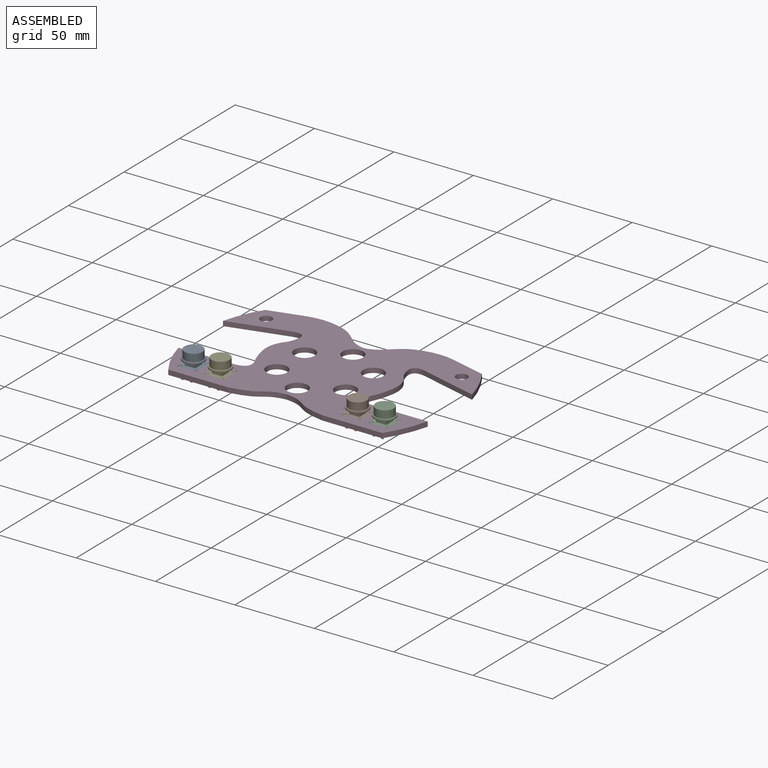
[diagram: assembled view]
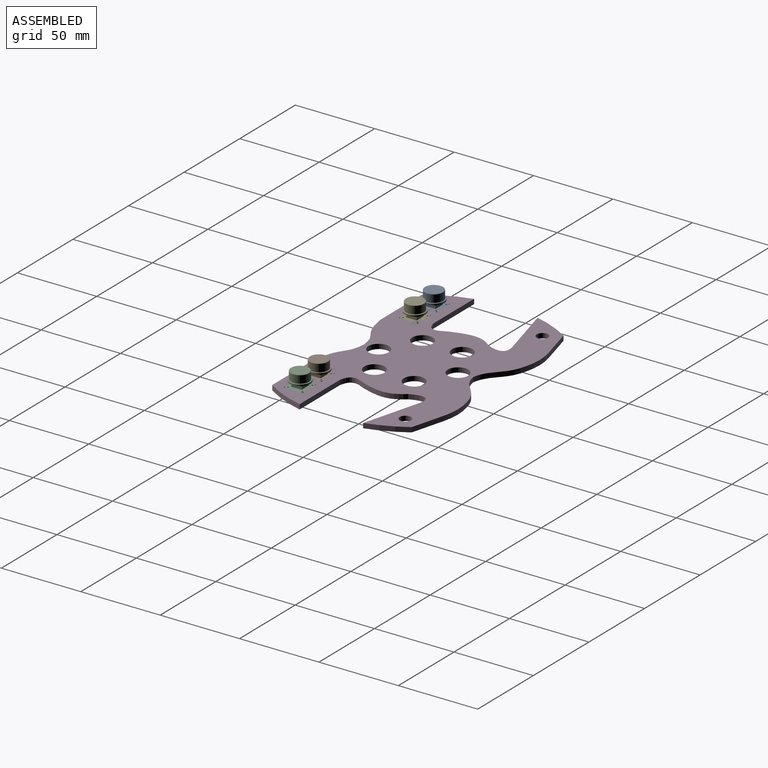
[diagram: assembled view, second angle]
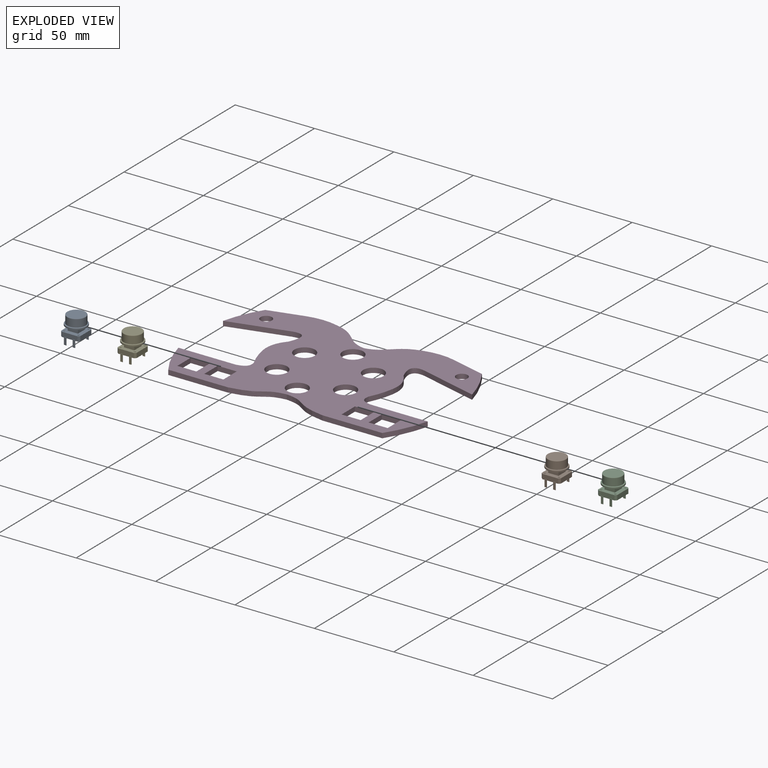
[diagram: exploded view]
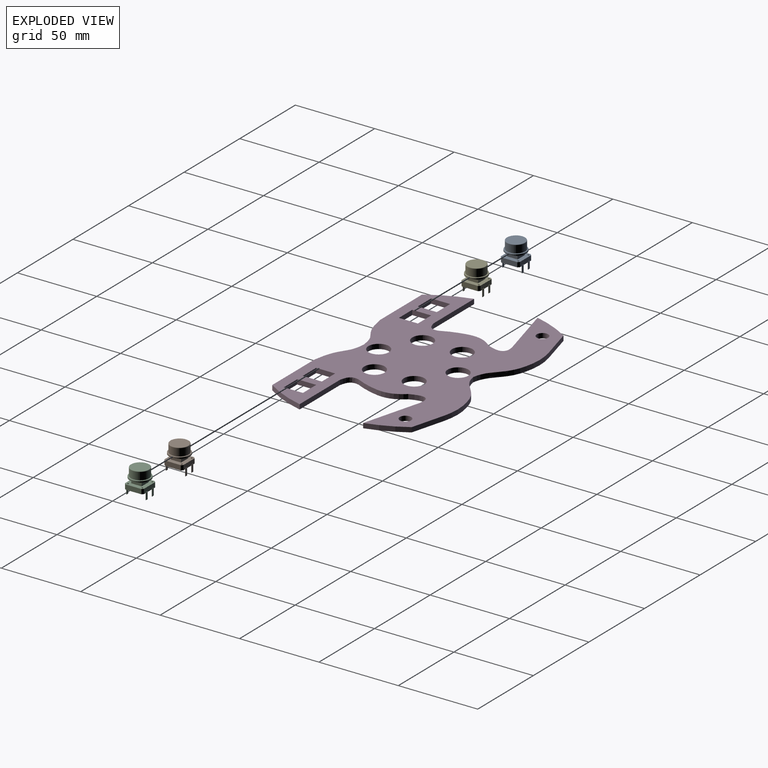
[diagram: exploded view, second angle]
ASSEMBLY  parts=5 mates=4
PART A: 53 faces, bbox 14.1x14.1x16 mm
  f0: plane 10x3mm, normal (0,1,0), area 28.5mm2, adj f4,f5,f15,f17,f20,f22,f24,f26
  f1: plane 10x3mm, normal (-1,0,0), area 30mm2, adj f4,f5,f39,f42
  f2: plane 10x3mm, normal (0,-1,0), area 28.5mm2, adj f4,f5,f27,f29,f32,f34,f35,f38
  f3: plane 10x3mm, normal (1,0,0), area 30mm2, adj f4,f5,f40,f41
  f4: plane 12x12mm, normal (0,0,1), area 96.6mm2, adj f0,f1,f2,f3,f6,f7,f8,f9
  f5: plane 12x12mm, normal (0,0,-1), area 142mm2, adj f0,f1,f2,f3,f16,f21,f28,f33
  f6: plane 6.5x3mm, normal (0,-1,0), area 19.5mm2, adj f4,f7,f9,f10
  f7: plane 6.5x3mm, normal (1,0,0), area 19.5mm2, adj f4,f6,f8,f10
  f8: plane 6.5x3mm, normal (0,1,0), area 19.5mm2, adj f4,f7,f9,f10
  f9: plane 6.5x3mm, normal (-1,0,0), area 19.5mm2, adj f4,f6,f8,f10
  f10: plane 13x13mm, normal (0,0,-1), area 90.5mm2, adj f6,f7,f8,f9,f11
  f11: cylinder r=6.5mm len=13mm, axis (0,0,-1), area 30.6mm2, adj f10,f51
  f12: plane 12.5x12.5mm, normal (0,0,1), area 18.8mm2, adj f14,f51
  f13: plane 11x11mm, normal (0,0,1), area 95mm2, adj f52
  f14: cylinder r=5.75mm len=11.5mm, axis (0,0,-1), area 171.6mm2, adj f12,f52
  f15: plane 4.5x0.2mm, normal (-1,0,0), area 0.9mm2, adj f0,f16,f18,f19,f20
  f16: plane 4x1.5mm, normal (0,-1,0), area 6mm2, adj f5,f15,f17,f19
  f17: plane 4.5x0.2mm, normal (1,0,0), area 0.9mm2, adj f0,f16,f18,f19,f20
  f18: plane 4.5x1.5mm, normal (0,1,0), area 6.8mm2, adj f15,f17,f19,f20
  f19: plane 1.5x0.2mm, normal (0,0,-1), area 0.3mm2, adj f15,f16,f17,f18
  f20: plane 1.5x0.2mm, normal (0,0,1), area 0.3mm2, adj f0,f15,f17,f18
  f21: plane 4x1.5mm, normal (0,-1,0), area 6mm2, adj f5,f22,f24,f25
  f22: plane 4.5x0.2mm, normal (1,0,0), area 0.9mm2, adj f0,f21,f23,f25,f26
  f23: plane 4.5x1.5mm, normal (0,1,0), area 6.8mm2, adj f22,f24,f25,f26
  f24: plane 4.5x0.2mm, normal (-1,0,0), area 0.9mm2, adj f0,f21,f23,f25,f26
  f25: plane 1.5x0.2mm, normal (0,0,-1), area 0.3mm2, adj f21,f22,f23,f24
  f26: plane 1.5x0.2mm, normal (0,0,1), area 0.3mm2, adj f0,f22,f23,f24
  f27: plane 4.5x0.2mm, normal (1,0,0), area 0.9mm2, adj f2,f28,f30,f31,f32
  f28: plane 4x1.5mm, normal (0,1,0), area 6mm2, adj f5,f27,f29,f31
  f29: plane 4.5x0.2mm, normal (-1,0,0), area 0.9mm2, adj f2,f28,f30,f31,f32
  f30: plane 4.5x1.5mm, normal (0,-1,0), area 6.8mm2, adj f27,f29,f31,f32
  f31: plane 1.5x0.2mm, normal (0,0,-1), area 0.3mm2, adj f27,f28,f29,f30
  f32: plane 1.5x0.2mm, normal (0,0,1), area 0.3mm2, adj f2,f27,f29,f30
  f33: plane 4x1.5mm, normal (0,1,0), area 6mm2, adj f5,f34,f35,f37
  f34: plane 4.5x0.2mm, normal (1,0,0), area 0.9mm2, adj f2,f33,f36,f37,f38
  f35: plane 4.5x0.2mm, normal (-1,0,0), area 0.9mm2, adj f2,f33,f36,f37,f38
  f36: plane 4.5x1.5mm, normal (0,-1,0), area 6.8mm2, adj f34,f35,f37,f38
  f37: plane 1.5x0.2mm, normal (0,0,-1), area 0.3mm2, adj f33,f34,f35,f36
  f38: plane 1.5x0.2mm, normal (0,0,1), area 0.3mm2, adj f2,f34,f35,f36
  f39: plane 3x1mm, normal (-0.71,0.71,0), area 4.2mm2, adj f0,f1,f4,f5
  f40: plane 3x1mm, normal (0.71,-0.71,0), area 4.2mm2, adj f2,f3,f4,f5
  f41: plane 3x1mm, normal (0.71,0.71,0), area 4.2mm2, adj f0,f3,f4,f5
  f42: plane 3x1mm, normal (-0.71,-0.71,0), area 4.2mm2, adj f1,f2,f4,f5
  f43: cylinder r=0.5mm len=1mm, axis (0,0,-1), area 0.9mm2, adj f4,f44
  f44: plane 1x1mm, normal (0,0,1), area 0.8mm2, adj f43
  f45: cylinder r=0.5mm len=1mm, axis (0,0,-1), area 0.9mm2, adj f4,f46
  f46: plane 1x1mm, normal (0,0,1), area 0.8mm2, adj f45
  f47: cylinder r=0.5mm len=1mm, axis (0,0,-1), area 0.9mm2, adj f4,f48
  f48: plane 1x1mm, normal (0,0,1), area 0.8mm2, adj f47
  f49: cylinder r=0.5mm len=1mm, axis (0,0,-1), area 0.9mm2, adj f4,f50
  f50: plane 1x1mm, normal (0,0,1), area 0.8mm2, adj f49
  f51: torus R=6.25mm, axis (0,0,1), area 15.8mm2, adj f11,f12
  f52: torus R=5.5mm, axis (0,0,1), area 14mm2, adj f13,f14
PART B: same geometry as A
PART C: same geometry as A
PART D: 52 faces, bbox 157x95.5x3 mm
  f0: plane 12x3mm, normal (0,-1,0), area 36mm2, adj f1,f44,f50,f51
  f1: plane 12x3mm, normal (-1,0,0), area 36mm2, adj f0,f2,f50,f51
  f2: plane 12x3mm, normal (0,1,0), area 36mm2, adj f1,f44,f50,f51
  f3: plane 12x3mm, normal (1,0,0), area 36mm2, adj f4,f45,f50,f51
  f4: plane 12x3mm, normal (0,-1,0), area 36mm2, adj f3,f5,f50,f51
  f5: plane 12x3mm, normal (-1,0,0), area 36mm2, adj f4,f45,f50,f51
  f6: plane 12x3mm, normal (-1,0,0), area 36mm2, adj f7,f46,f50,f51
  f7: plane 12x3mm, normal (0,1,0), area 36mm2, adj f6,f8,f50,f51
  f8: plane 12x3mm, normal (1,0,0), area 36mm2, adj f7,f46,f50,f51
  f9: plane 12x3mm, normal (1,0,0), area 36mm2, adj f10,f47,f50,f51
  f10: plane 12x3mm, normal (0,-1,0), area 36mm2, adj f9,f11,f50,f51
  f11: plane 12x3mm, normal (-1,0,0), area 36mm2, adj f10,f47,f50,f51
  f12: extruded ~7.37x6.23mm, area 33.4mm2, adj f13,f48,f50,f51
  f13: plane 36.4x3mm, normal (0,1,0), area 109.2mm2, adj f12,f14,f50,f51
  f14: cylinder r=80.98mm len=25mm, axis (0,0,-1), area 82.4mm2, adj f13,f15,f50,f51
  f15: plane 37.66x3mm, normal (0,-1,0), area 113mm2, adj f14,f16,f50,f51
  f16: extruded ~29.75x10.37mm, area 95.7mm2, adj f15,f17,f50,f51
  f17: extruded ~29.75x10.37mm, area 95.7mm2, adj f16,f18,f50,f51
  f18: plane 37.66x3mm, normal (0,-1,0), area 113mm2, adj f17,f19,f50,f51
  f19: cylinder r=80.98mm len=25mm, axis (0,0,-1), area 82.4mm2, adj f18,f20,f50,f51
  f20: plane 36.4x3mm, normal (0,1,0), area 109.2mm2, adj f19,f21,f50,f51
  f21: extruded ~7.37x6.23mm, area 33.4mm2, adj f20,f22,f50,f51
  f22: extruded ~12.5x4.35mm, area 39.8mm2, adj f21,f23,f50,f51
  f23: extruded ~18.91x5.21mm, area 61mm2, adj f22,f24,f50,f51
  f24: extruded ~11.46x7.48mm, area 53mm2, adj f23,f25,f50,f51
  f25: plane 36.78x9.86mm, normal (-0.26,-0.97,0), area 114.2mm2, adj f24,f26,f50,f51
  f26: cylinder r=80.98mm len=23.43mm, axis (0,0,-1), area 77mm2, adj f25,f27,f50,f51
  f27: plane 21.42x5.74mm, normal (0.26,0.97,0), area 66.5mm2, adj f26,f28,f50,f51
  f28: cylinder r=38.64mm len=20mm, axis (0,0,-1), area 60.7mm2, adj f27,f29,f50,f51
  f29: extruded ~26.83x14.82mm, area 93.4mm2, adj f28,f30,f50,f51
  f30: extruded ~26.83x14.82mm, area 93.4mm2, adj f29,f31,f50,f51
  f31: cylinder r=38.64mm len=20mm, axis (0,0,-1), area 60.7mm2, adj f30,f32,f50,f51
  f32: plane 21.42x5.74mm, normal (-0.26,0.97,0), area 66.5mm2, adj f31,f33,f50,f51
  f33: cylinder r=80.98mm len=23.43mm, axis (0,0,-1), area 77mm2, adj f32,f34,f50,f51
  f34: plane 36.78x9.86mm, normal (0.26,-0.97,0), area 114.2mm2, adj f33,f35,f50,f51
  f35: extruded ~11.46x7.48mm, area 53mm2, adj f34,f36,f50,f51
  f36: extruded ~18.91x5.21mm, area 61mm2, adj f35,f48,f50,f51
  f37: cylinder r=6.5mm len=13mm, axis (0,0,-1), area 122.5mm2, adj f50,f51
  f38: cylinder r=3.6mm len=7.2mm, axis (0,0,-1), area 67.9mm2, adj f50,f51
  f39: cylinder r=6.5mm len=13mm, axis (0,0,-1), area 122.5mm2, adj f50,f51
  f40: cylinder r=6.5mm len=13mm, axis (0,0,-1), area 122.5mm2, adj f50,f51
  f41: cylinder r=6.5mm len=13mm, axis (0,0,-1), area 122.5mm2, adj f50,f51
  f42: cylinder r=6.5mm len=13mm, axis (0,0,-1), area 122.5mm2, adj f50,f51
  f43: cylinder r=6.5mm len=13mm, axis (0,0,-1), area 122.5mm2, adj f50,f51
  f44: plane 12x3mm, normal (1,0,0), area 36mm2, adj f0,f2,f50,f51
  f45: plane 12x3mm, normal (0,1,0), area 36mm2, adj f3,f5,f50,f51
  f46: plane 12x3mm, normal (0,-1,0), area 36mm2, adj f6,f8,f50,f51
  f47: plane 12x3mm, normal (0,1,0), area 36mm2, adj f9,f11,f50,f51
  f48: extruded ~12.5x4.35mm, area 39.8mm2, adj f12,f36,f50,f51
  f49: cylinder r=3.6mm len=7.2mm, axis (0,0,-1), area 67.9mm2, adj f50,f51
  f50: plane 157x95.51mm, normal (0,0,1), area 8326.1mm2, adj f0,f1,f2,f3,f4,f5,f6,f7
  f51: plane 157x95.51mm, normal (0,0,-1), area 8326.1mm2, adj f0,f1,f2,f3,f4,f5,f6,f7
PART E: same geometry as A
PLACE A t=(-73.69,-39.2,4.24)mm
PLACE B t=(29.76,-39.2,4.24)mm
PLACE C t=(46.76,-39.2,4.24)mm
PLACE D t=(-13.47,-6.83,4.24)mm
PLACE E t=(-56.69,-39.2,4.24)mm
MATE fastened B.f1 <-> D.f44  axis (-1,0,0) through (23.76,-39.2,5.74)mm
MATE fastened C.f3 <-> D.f5  axis (1,0,0) through (52.76,-39.2,5.74)mm
MATE fastened E.f1 <-> D.f9  axis (-1,0,0) through (-62.69,-39.2,5.74)mm
MATE fastened A.f1 <-> D.f8  axis (-1,0,0) through (-79.69,-39.2,5.74)mm
